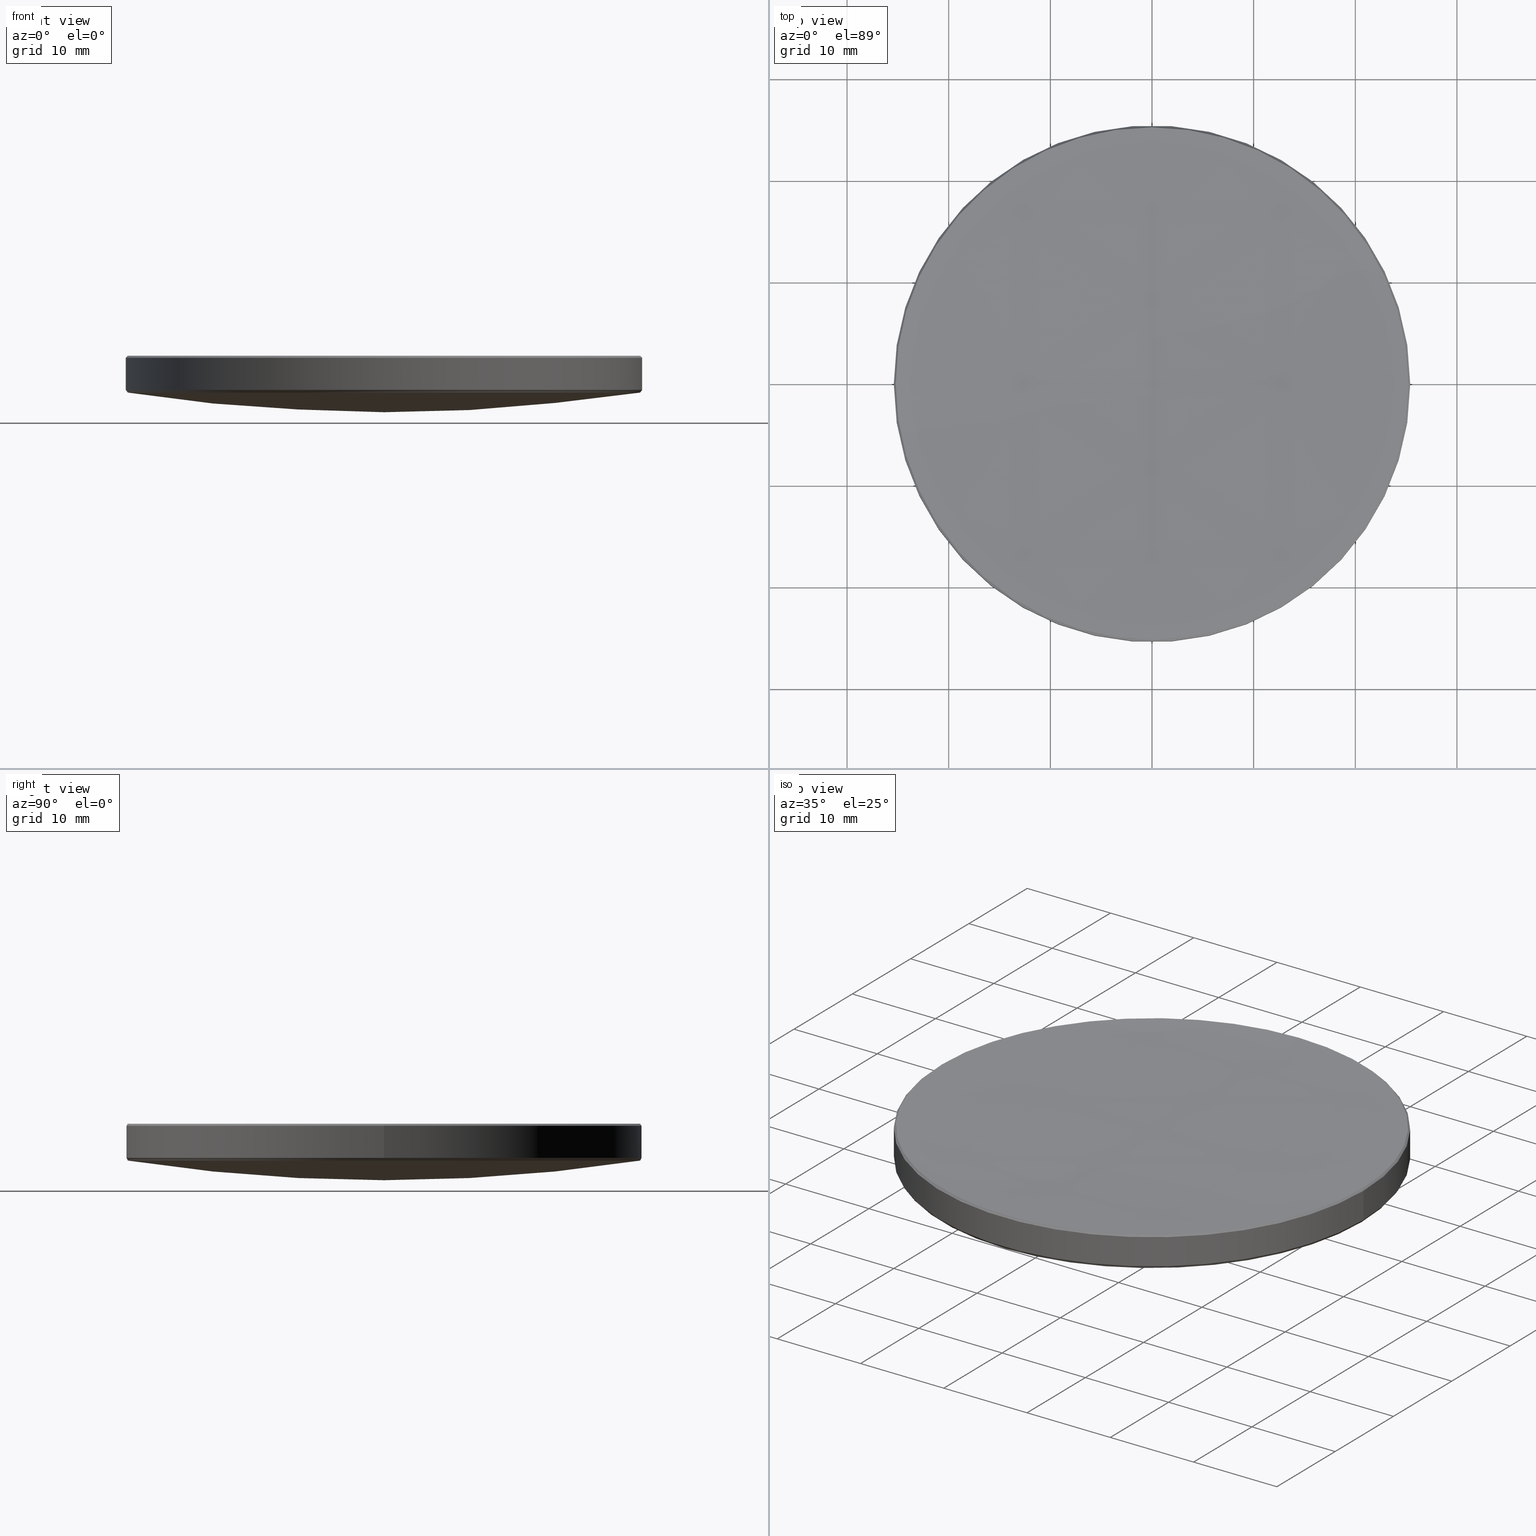
[diagram: canonical four-view strip — front | top / right | iso, engineering-drawing reading convention]
A machine part, canonical four-view strip (front | top / right | iso — engineering-drawing reading convention). The complete STEP part file that produces these views, byte-faithful:
ISO-10303-21;
HEADER;
FILE_DESCRIPTION (( 'STEP AP214' ),
    '1' );
FILE_NAME ('GLM2-050B-500-UV.STEP',
    '2024-08-09T03:00:48',
    ( 'Windows User' ),
    ( 'P R C' ),
    'SwSTEP 2.0',
    'SolidWorks 2022',
    '' );
FILE_SCHEMA (( 'AUTOMOTIVE_DESIGN' ));
ENDSEC;

DATA;
#1 = AXIS2_PLACEMENT_3D ( 'NONE', #275, #308, #230 ) ;
#2 = CARTESIAN_POINT ( 'NONE',  ( 0.000000000000000000, 0.000000000000000000, 17.59166947258827918 ) ) ;
#3 = CIRCLE ( 'NONE', #282, 25.20833052741164693 ) ;
#4 = DIRECTION ( 'NONE',  ( -0.000000000000000000, -0.000000000000000000, -1.000000000000000000 ) ) ;
#5 = CARTESIAN_POINT ( 'NONE',  ( 0.000000000000000000, 0.000000000000000000, 17.39999999999997016 ) ) ;
#6 = VERTEX_POINT ( 'NONE', #119 ) ;
#7 = ADVANCED_FACE ( 'NONE', ( #220 ), #287, .T. ) ;
#8 = APPLICATION_PROTOCOL_DEFINITION ( 'draft international standard', 'automotive_design', 1998, #221 ) ;
#9 = AXIS2_PLACEMENT_3D ( 'NONE', #148, #249, #124 ) ;
#10 = PRESENTATION_STYLE_ASSIGNMENT (( #301 ) ) ;
#11 = ORIENTED_EDGE ( 'NONE', *, *, #279, .F. ) ;
#12 = ORIENTED_EDGE ( 'NONE', *, *, #326, .T. ) ;
#13 = CIRCLE ( 'NONE', #73, 25.39999999999999858 ) ;
#14 = VERTEX_POINT ( 'NONE', #146 ) ;
#15 = VERTEX_POINT ( 'NONE', #270 ) ;
#16 = EDGE_CURVE ( 'NONE', #15, #169, #13, .T. ) ;
#17 = FACE_OUTER_BOUND ( 'NONE', #315, .T. ) ;
#18 = CARTESIAN_POINT ( 'NONE',  ( 0.000000000000000000, 3.568314611015600113E-14, 17.04618901191712155 ) ) ;
#19 = DIRECTION ( 'NONE',  ( -0.000000000000000000, -0.000000000000000000, 1.000000000000000000 ) ) ;
#20 = AXIS2_PLACEMENT_3D ( 'NONE', #79, #304, #155 ) ;
#21 = SURFACE_STYLE_FILL_AREA ( #184 ) ;
#22 = EDGE_CURVE ( 'NONE', #317, #118, #189, .T. ) ;
#23 = DIRECTION ( 'NONE',  ( 0.000000000000000000, 1.000000000000000000, 0.000000000000000000 ) ) ;
#24 = LINE ( 'NONE', #300, #276 ) ;
#25 =( GEOMETRIC_REPRESENTATION_CONTEXT ( 3 ) GLOBAL_UNCERTAINTY_ASSIGNED_CONTEXT ( ( #258 ) ) GLOBAL_UNIT_ASSIGNED_CONTEXT ( ( #241, #235, #190 ) ) REPRESENTATION_CONTEXT ( 'NONE', 'WORKASPACE' ) );
#26 = DIRECTION ( 'NONE',  ( -0.000000000000000000, -0.000000000000000000, -1.000000000000000000 ) ) ;
#27 = EDGE_CURVE ( 'NONE', #269, #290, #260, .T. ) ;
#28 = PRODUCT_DEFINITION_CONTEXT ( 'detailed design', #221, 'design' ) ;
#29 = CIRCLE ( 'NONE', #91, 25.20833052741164693 ) ;
#30 = PRESENTATION_STYLE_ASSIGNMENT (( #89 ) ) ;
#31 = DIRECTION ( 'NONE',  ( 1.000000000000000000, 0.000000000000000000, 0.000000000000000000 ) ) ;
#32 = SHAPE_DEFINITION_REPRESENTATION ( #296, #65 ) ;
#33 = ORIENTED_EDGE ( 'NONE', *, *, #320, .T. ) ;
#34 = ORIENTED_EDGE ( 'NONE', *, *, #153, .F. ) ;
#35 = EDGE_LOOP ( 'NONE', ( #165, #140, #215, #98 ) ) ;
#36 = AXIS2_PLACEMENT_3D ( 'NONE', #2, #214, #294 ) ;
#37 = ORIENTED_EDGE ( 'NONE', *, *, #16, .F. ) ;
#38 = PRODUCT_RELATED_PRODUCT_CATEGORY ( 'part', '', ( #280 ) ) ;
#39 = PRESENTATION_LAYER_ASSIGNMENT (  '', '', ( #172 ) ) ;
#40 = ORIENTED_EDGE ( 'NONE', *, *, #331, .T. ) ;
#41 =( NAMED_UNIT ( * ) SI_UNIT ( $, .STERADIAN. ) SOLID_ANGLE_UNIT ( ) );
#42 = AXIS2_PLACEMENT_3D ( 'NONE', #170, #267, #318 ) ;
#43 = CARTESIAN_POINT ( 'NONE',  ( 0.000000000000000000, 0.000000000000000000, 17.39999999999997016 ) ) ;
#44 = VERTEX_POINT ( 'NONE', #18 ) ;
#45 = DIRECTION ( 'NONE',  ( 1.000000000000000000, 0.000000000000000000, 0.000000000000000000 ) ) ;
#46 = DIRECTION ( 'NONE',  ( 0.000000000000000000, 1.000000000000000000, 0.000000000000000000 ) ) ;
#47 = CARTESIAN_POINT ( 'NONE',  ( -25.20247402996205821, 3.098507892486505665E-15, 13.96941892127251350 ) ) ;
#48 = DIRECTION ( 'NONE',  ( 0.000000000000000000, 0.000000000000000000, -1.000000000000000000 ) ) ;
#49 = CARTESIAN_POINT ( 'NONE',  ( -25.39999999999999858, 0.000000000000000000, 20.00000000000000000 ) ) ;
#50 = CARTESIAN_POINT ( 'NONE',  ( -25.39999999999999858, 3.110602869834276865E-15, 14.23965329215320885 ) ) ;
#51 = CARTESIAN_POINT ( 'NONE',  ( -25.39999999999999858, 0.000000000000000000, 17.39999999999997016 ) ) ;
#52 = SPHERICAL_SURFACE ( 'NONE', #323, 165.3700000000000045 ) ;
#53 = AXIS2_PLACEMENT_3D ( 'NONE', #5, #236, #312 ) ;
#54 = COLOUR_RGB ( '',1.000000000000000000, 1.000000000000000000, 1.000000000000000000 ) ;
#55 = UNCERTAINTY_MEASURE_WITH_UNIT (LENGTH_MEASURE( 1.000000000000000082E-05 ), #138, 'distance_accuracy_value', 'NONE');
#56 = AXIS2_PLACEMENT_3D ( 'NONE', #122, #177, #321 ) ;
#57 = DIRECTION ( 'NONE',  ( 1.000000000000000000, 0.000000000000000000, 0.000000000000000000 ) ) ;
#58 = ORIENTED_EDGE ( 'NONE', *, *, #197, .T. ) ;
#59 = CIRCLE ( 'NONE', #125, 25.20833052741164693 ) ;
#60 = CARTESIAN_POINT ( 'NONE',  ( 0.000000000000000000, 0.000000000000000000, 17.59166947258827918 ) ) ;
#61 = CARTESIAN_POINT ( 'NONE',  ( 0.000000000000000000, 0.000000000000000000, 20.00000000000000000 ) ) ;
#62 = CARTESIAN_POINT ( 'NONE',  ( 0.000000000000000000, 0.000000000000000000, 0.000000000000000000 ) ) ;
#63 = EDGE_LOOP ( 'NONE', ( #293, #289, #11, #142, #37 ) ) ;
#64 = CARTESIAN_POINT ( 'NONE',  ( 0.000000000000000000, 0.000000000000000000, 14.23965329215320885 ) ) ;
#65 = ADVANCED_BREP_SHAPE_REPRESENTATION ( 'GLM2-050B-500-UV', ( #240, #71 ), #109 ) ;
#66 = DIRECTION ( 'NONE',  ( -0.000000000000000000, -0.000000000000000000, 1.000000000000000000 ) ) ;
#67 = ORIENTED_EDGE ( 'NONE', *, *, #331, .F. ) ;
#68 = CARTESIAN_POINT ( 'NONE',  ( 0.000000000000000000, 25.20833052741184588, 17.59166947258827918 ) ) ;
#69 = CONICAL_SURFACE ( 'NONE', #256, 25.39999999999999858, 0.6311927713080182079 ) ;
#70 = ORIENTED_EDGE ( 'NONE', *, *, #16, .T. ) ;
#71 = AXIS2_PLACEMENT_3D ( 'NONE', #62, #120, #286 ) ;
#72 = ORIENTED_EDGE ( 'NONE', *, *, #87, .F. ) ;
#73 = AXIS2_PLACEMENT_3D ( 'NONE', #97, #66, #245 ) ;
#74 = DIRECTION ( 'NONE',  ( 1.000000000000000000, 0.000000000000000000, 0.000000000000000000 ) ) ;
#75 = LINE ( 'NONE', #322, #332 ) ;
#76 = CARTESIAN_POINT ( 'NONE',  ( -25.20833052741164693, 0.000000000000000000, 17.59166947258827918 ) ) ;
#77 = DIRECTION ( 'NONE',  ( -1.000000000000000000, 0.000000000000000000, 0.000000000000000000 ) ) ;
#78 = AXIS2_PLACEMENT_3D ( 'NONE', #262, #114, #211 ) ;
#79 = CARTESIAN_POINT ( 'NONE',  ( 0.000000000000000000, 0.000000000000000000, 13.96941892127251350 ) ) ;
#80 = CONICAL_SURFACE ( 'NONE', #117, 25.20833052741166114, 0.7853981633975297694 ) ;
#81 = CARTESIAN_POINT ( 'NONE',  ( 0.000000000000000000, 0.000000000000000000, 17.59166947258827918 ) ) ;
#82 = DIRECTION ( 'NONE',  ( -1.000000000000000000, 0.000000000000000000, 0.000000000000000000 ) ) ;
#83 = EDGE_CURVE ( 'NONE', #168, #319, #299, .T. ) ;
#84 = DIRECTION ( 'NONE',  ( -0.000000000000000000, -0.000000000000000000, 1.000000000000000000 ) ) ;
#85 = DIRECTION ( 'NONE',  ( -1.000000000000000000, 0.000000000000000000, 0.000000000000000000 ) ) ;
#86 = CIRCLE ( 'NONE', #263, 582.7500000000000000 ) ;
#87 = EDGE_CURVE ( 'NONE', #14, #247, #3, .T. ) ;
#88 = ADVANCED_FACE ( 'NONE', ( #272 ), #137, .T. ) ;
#89 = SURFACE_STYLE_USAGE ( .BOTH. , #92 ) ;
#90 = EDGE_LOOP ( 'NONE', ( #199, #193, #222, #266, #213 ) ) ;
#91 = AXIS2_PLACEMENT_3D ( 'NONE', #208, #84, #45 ) ;
#92 = SURFACE_SIDE_STYLE ('',( #217 ) ) ;
#93 =( NAMED_UNIT ( * ) PLANE_ANGLE_UNIT ( ) SI_UNIT ( $, .RADIAN. ) );
#94 = ORIENTED_EDGE ( 'NONE', *, *, #187, .T. ) ;
#95 = AXIS2_PLACEMENT_3D ( 'NONE', #179, #85, #23 ) ;
#96 = EDGE_CURVE ( 'NONE', #317, #15, #107, .T. ) ;
#97 = CARTESIAN_POINT ( 'NONE',  ( 0.000000000000000000, 0.000000000000000000, 14.23965329215320885 ) ) ;
#98 = ORIENTED_EDGE ( 'NONE', *, *, #22, .T. ) ;
#99 = EDGE_LOOP ( 'NONE', ( #174, #40, #12, #288 ) ) ;
#100 = ORIENTED_EDGE ( 'NONE', *, *, #186, .T. ) ;
#101 = CIRCLE ( 'NONE', #78, 25.20247402996205821 ) ;
#102 = CARTESIAN_POINT ( 'NONE',  ( 0.000000000000000000, 0.000000000000000000, 17.59166947258827918 ) ) ;
#103 = PRESENTATION_LAYER_ASSIGNMENT (  '', '', ( #237 ) ) ;
#104 = FACE_OUTER_BOUND ( 'NONE', #35, .T. ) ;
#105 = DIRECTION ( 'NONE',  ( -1.000000000000000000, 0.000000000000000000, 0.000000000000000000 ) ) ;
#106 = CARTESIAN_POINT ( 'NONE',  ( -3.087130129224342369E-15, -25.20833052741184588, 17.59166947258827918 ) ) ;
#107 = LINE ( 'NONE', #50, #206 ) ;
#108 = DIRECTION ( 'NONE',  ( 0.000000000000000000, 0.000000000000000000, -1.000000000000000000 ) ) ;
#109 =( GEOMETRIC_REPRESENTATION_CONTEXT ( 3 ) GLOBAL_UNCERTAINTY_ASSIGNED_CONTEXT ( ( #310 ) ) GLOBAL_UNIT_ASSIGNED_CONTEXT ( ( #133, #281, #110 ) ) REPRESENTATION_CONTEXT ( 'NONE', 'WORKASPACE' ) );
#110 =( NAMED_UNIT ( * ) SI_UNIT ( $, .STERADIAN. ) SOLID_ANGLE_UNIT ( ) );
#111 = AXIS2_PLACEMENT_3D ( 'NONE', #127, #19, #126 ) ;
#112 = AXIS2_PLACEMENT_3D ( 'NONE', #43, #297, #248 ) ;
#113 = ORIENTED_EDGE ( 'NONE', *, *, #320, .F. ) ;
#114 = DIRECTION ( 'NONE',  ( 0.000000000000000000, 0.000000000000000000, -1.000000000000000000 ) ) ;
#115 = VERTEX_POINT ( 'NONE', #76 ) ;
#116 = DIRECTION ( 'NONE',  ( -1.000000000000000000, 0.000000000000000000, 0.000000000000000000 ) ) ;
#117 = AXIS2_PLACEMENT_3D ( 'NONE', #81, #253, #82 ) ;
#118 = VERTEX_POINT ( 'NONE', #330 ) ;
#119 = CARTESIAN_POINT ( 'NONE',  ( 25.20247402996205821, 0.000000000000000000, 13.96941892127251350 ) ) ;
#120 = DIRECTION ( 'NONE',  ( 0.000000000000000000, 0.000000000000000000, 1.000000000000000000 ) ) ;
#121 = ORIENTED_EDGE ( 'NONE', *, *, #261, .T. ) ;
#122 = CARTESIAN_POINT ( 'NONE',  ( 0.000000000000000000, 0.000000000000000000, 177.4077014708915385 ) ) ;
#123 = FACE_OUTER_BOUND ( 'NONE', #198, .T. ) ;
#124 = DIRECTION ( 'NONE',  ( -1.224646799147353207E-16, -1.000000000000000000, 0.000000000000000000 ) ) ;
#125 = AXIS2_PLACEMENT_3D ( 'NONE', #325, #324, #229 ) ;
#126 = DIRECTION ( 'NONE',  ( -1.000000000000000000, 0.000000000000000000, 0.000000000000000000 ) ) ;
#127 = CARTESIAN_POINT ( 'NONE',  ( 0.000000000000000000, 0.000000000000000000, 14.23965329215320885 ) ) ;
#128 = EDGE_CURVE ( 'NONE', #44, #247, #86, .T. ) ;
#129 = FILL_AREA_STYLE_COLOUR ( '', #54 ) ;
#130 = CARTESIAN_POINT ( 'NONE',  ( 0.000000000000000000, 0.000000000000000000, 599.7961890119171358 ) ) ;
#131 = SPHERICAL_SURFACE ( 'NONE', #216, 165.3700000000000045 ) ;
#132 = VECTOR ( 'NONE', #154, 1000.000000000000114 ) ;
#133 =( LENGTH_UNIT ( ) NAMED_UNIT ( * ) SI_UNIT ( .MILLI., .METRE. ) );
#134 = ADVANCED_FACE ( 'NONE', ( #104 ), #52, .T. ) ;
#135 = FACE_OUTER_BOUND ( 'NONE', #63, .T. ) ;
#136 = COLOUR_RGB ( '',1.000000000000000000, 1.000000000000000000, 1.000000000000000000 ) ;
#137 = CYLINDRICAL_SURFACE ( 'NONE', #246, 25.39999999999999858 ) ;
#138 =( LENGTH_UNIT ( ) NAMED_UNIT ( * ) SI_UNIT ( .MILLI., .METRE. ) );
#139 = ORIENTED_EDGE ( 'NONE', *, *, #326, .F. ) ;
#140 = ORIENTED_EDGE ( 'NONE', *, *, #83, .T. ) ;
#141 = MECHANICAL_DESIGN_GEOMETRIC_PRESENTATION_REPRESENTATION (  '', ( #237 ), #188 ) ;
#142 = ORIENTED_EDGE ( 'NONE', *, *, #283, .T. ) ;
#143 = ORIENTED_EDGE ( 'NONE', *, *, #233, .T. ) ;
#144 = EDGE_LOOP ( 'NONE', ( #191, #210, #100, #70 ) ) ;
#145 = AXIS2_PLACEMENT_3D ( 'NONE', #61, #242, #116 ) ;
#146 = CARTESIAN_POINT ( 'NONE',  ( 25.20833052741164693, 3.098866499529297784E-15, 17.59166947258827918 ) ) ;
#147 = ORIENTED_EDGE ( 'NONE', *, *, #153, .T. ) ;
#148 = CARTESIAN_POINT ( 'NONE',  ( 0.000000000000000000, 0.000000000000000000, 599.7961890119171358 ) ) ;
#149 = FACE_OUTER_BOUND ( 'NONE', #90, .T. ) ;
#150 = SPHERICAL_SURFACE ( 'NONE', #95, 582.7500000000000000 ) ;
#151 = DIRECTION ( 'NONE',  ( 0.000000000000000000, 1.000000000000000000, 0.000000000000000000 ) ) ;
#152 = CIRCLE ( 'NONE', #309, 25.20247402996205821 ) ;
#153 = EDGE_CURVE ( 'NONE', #115, #239, #59, .T. ) ;
#154 = DIRECTION ( 'NONE',  ( 0.5901081306526686499, 0.000000000000000000, 0.8073242187235639689 ) ) ;
#155 = DIRECTION ( 'NONE',  ( 1.000000000000000000, 0.000000000000000000, 0.000000000000000000 ) ) ;
#156 = DIRECTION ( 'NONE',  ( -0.000000000000000000, -0.000000000000000000, -1.000000000000000000 ) ) ;
#157 = CARTESIAN_POINT ( 'NONE',  ( 0.000000000000000000, 0.000000000000000000, 177.4077014708915385 ) ) ;
#158 = CIRCLE ( 'NONE', #53, 25.39999999999999858 ) ;
#159 = MECHANICAL_DESIGN_GEOMETRIC_PRESENTATION_REPRESENTATION (  '', ( #172 ), #25 ) ;
#160 = AXIS2_PLACEMENT_3D ( 'NONE', #130, #77, #151 ) ;
#161 = CIRCLE ( 'NONE', #295, 165.3700000000000045 ) ;
#162 = ADVANCED_FACE ( 'NONE', ( #149 ), #183, .T. ) ;
#163 = FILL_AREA_STYLE_COLOUR ( '', #136 ) ;
#164 = CARTESIAN_POINT ( 'NONE',  ( 25.39999999999999858, 3.110602869834276865E-15, 17.39999999999997016 ) ) ;
#165 = ORIENTED_EDGE ( 'NONE', *, *, #233, .F. ) ;
#166 = CIRCLE ( 'NONE', #111, 25.39999999999999858 ) ;
#167 = EDGE_CURVE ( 'NONE', #319, #317, #152, .T. ) ;
#168 = VERTEX_POINT ( 'NONE', #257 ) ;
#169 = VERTEX_POINT ( 'NONE', #254 ) ;
#170 = CARTESIAN_POINT ( 'NONE',  ( 0.000000000000000000, 0.000000000000000000, 13.96941892127251350 ) ) ;
#171 = ORIENTED_EDGE ( 'NONE', *, *, #197, .F. ) ;
#172 = STYLED_ITEM ( 'NONE', ( #30 ), #65 ) ;
#173 = ORIENTED_EDGE ( 'NONE', *, *, #255, .T. ) ;
#174 = ORIENTED_EDGE ( 'NONE', *, *, #128, .F. ) ;
#175 = DIRECTION ( 'NONE',  ( -0.000000000000000000, -0.000000000000000000, 1.000000000000000000 ) ) ;
#176 = CLOSED_SHELL ( 'NONE', ( #250, #162, #303, #134, #88, #7, #219, #231, #243, #227 ) ) ;
#177 = DIRECTION ( 'NONE',  ( -1.000000000000000000, 1.224646799147353207E-16, 0.000000000000000000 ) ) ;
#178 = FACE_OUTER_BOUND ( 'NONE', #99, .T. ) ;
#179 = CARTESIAN_POINT ( 'NONE',  ( 0.000000000000000000, 0.000000000000000000, 599.7961890119171358 ) ) ;
#180 = EDGE_CURVE ( 'NONE', #169, #15, #166, .T. ) ;
#181 = DIRECTION ( 'NONE',  ( 1.000000000000000000, 0.000000000000000000, 0.000000000000000000 ) ) ;
#182 = CARTESIAN_POINT ( 'NONE',  ( -25.20833052741166114, 0.000000000000000000, 17.59166947258827918 ) ) ;
#183 = CONICAL_SURFACE ( 'NONE', #1, 25.39999999999999858, 0.6311927713080182079 ) ;
#184 = FILL_AREA_STYLE ('',( #129 ) ) ;
#185 = DIRECTION ( 'NONE',  ( 0.7071067811866051933, 8.659560562355639135E-17, -0.7071067811864899522 ) ) ;
#186 = EDGE_CURVE ( 'NONE', #290, #15, #225, .T. ) ;
#187 = EDGE_CURVE ( 'NONE', #118, #6, #305, .T. ) ;
#188 =( GEOMETRIC_REPRESENTATION_CONTEXT ( 3 ) GLOBAL_UNCERTAINTY_ASSIGNED_CONTEXT ( ( #55 ) ) GLOBAL_UNIT_ASSIGNED_CONTEXT ( ( #138, #93, #41 ) ) REPRESENTATION_CONTEXT ( 'NONE', 'WORKASPACE' ) );
#189 = CIRCLE ( 'NONE', #42, 25.20247402996205821 ) ;
#190 =( NAMED_UNIT ( * ) SI_UNIT ( $, .STERADIAN. ) SOLID_ANGLE_UNIT ( ) );
#191 = ORIENTED_EDGE ( 'NONE', *, *, #298, .F. ) ;
#192 = LINE ( 'NONE', #302, #132 ) ;
#193 = ORIENTED_EDGE ( 'NONE', *, *, #96, .T. ) ;
#194 = ORIENTED_EDGE ( 'NONE', *, *, #83, .F. ) ;
#195 = ORIENTED_EDGE ( 'NONE', *, *, #27, .F. ) ;
#196 = ORIENTED_EDGE ( 'NONE', *, *, #255, .F. ) ;
#197 = EDGE_CURVE ( 'NONE', #14, #269, #24, .T. ) ;
#198 = EDGE_LOOP ( 'NONE', ( #194, #143, #94, #271 ) ) ;
#199 = ORIENTED_EDGE ( 'NONE', *, *, #22, .F. ) ;
#200 = DIRECTION ( 'NONE',  ( -0.000000000000000000, -0.000000000000000000, 1.000000000000000000 ) ) ;
#201 = APPLICATION_CONTEXT ( 'automotive_design' ) ;
#202 = FACE_OUTER_BOUND ( 'NONE', #264, .T. ) ;
#203 = DIRECTION ( 'NONE',  ( 1.000000000000000000, -0.000000000000000000, 0.000000000000000000 ) ) ;
#204 = VECTOR ( 'NONE', #329, 1000.000000000000000 ) ;
#205 = DIRECTION ( 'NONE',  ( 0.000000000000000000, 1.000000000000000000, 0.000000000000000000 ) ) ;
#206 = VECTOR ( 'NONE', #306, 1000.000000000000114 ) ;
#207 = CARTESIAN_POINT ( 'NONE',  ( 0.000000000000000000, 0.000000000000000000, 599.7961890119171358 ) ) ;
#208 = CARTESIAN_POINT ( 'NONE',  ( 0.000000000000000000, 0.000000000000000000, 17.59166947258827918 ) ) ;
#209 = APPLICATION_PROTOCOL_DEFINITION ( 'draft international standard', 'automotive_design', 1998, #201 ) ;
#210 = ORIENTED_EDGE ( 'NONE', *, *, #27, .T. ) ;
#211 = DIRECTION ( 'NONE',  ( 1.000000000000000000, 0.000000000000000000, 0.000000000000000000 ) ) ;
#212 = CIRCLE ( 'NONE', #9, 582.7500000000000000 ) ;
#213 = ORIENTED_EDGE ( 'NONE', *, *, #187, .F. ) ;
#214 = DIRECTION ( 'NONE',  ( 0.000000000000000000, 0.000000000000000000, -1.000000000000000000 ) ) ;
#215 = ORIENTED_EDGE ( 'NONE', *, *, #167, .T. ) ;
#216 = AXIS2_PLACEMENT_3D ( 'NONE', #232, #328, #46 ) ;
#217 = SURFACE_STYLE_FILL_AREA ( #314 ) ;
#218 = ORIENTED_EDGE ( 'NONE', *, *, #186, .F. ) ;
#219 = ADVANCED_FACE ( 'NONE', ( #123 ), #131, .T. ) ;
#220 = FACE_OUTER_BOUND ( 'NONE', #144, .T. ) ;
#221 = APPLICATION_CONTEXT ( 'automotive_design' ) ;
#222 = ORIENTED_EDGE ( 'NONE', *, *, #180, .F. ) ;
#223 = ORIENTED_EDGE ( 'NONE', *, *, #261, .F. ) ;
#224 = PRODUCT_DEFINITION_FORMATION_WITH_SPECIFIED_SOURCE ( '�κ�', '', #280, .NOT_KNOWN. ) ;
#225 = LINE ( 'NONE', #49, #259 ) ;
#226 = CARTESIAN_POINT ( 'NONE',  ( 0.000000000000000000, 0.000000000000000000, 13.96941892127251350 ) ) ;
#227 = ADVANCED_FACE ( 'NONE', ( #202 ), #80, .T. ) ;
#228 = CARTESIAN_POINT ( 'NONE',  ( -3.086412915138717110E-15, -25.20247402996192321, 13.96941892127251350 ) ) ;
#229 = DIRECTION ( 'NONE',  ( 1.000000000000000000, 0.000000000000000000, 0.000000000000000000 ) ) ;
#230 = DIRECTION ( 'NONE',  ( 1.000000000000000000, 0.000000000000000000, 0.000000000000000000 ) ) ;
#231 = ADVANCED_FACE ( 'NONE', ( #274 ), #150, .F. ) ;
#232 = CARTESIAN_POINT ( 'NONE',  ( 0.000000000000000000, 0.000000000000000000, 177.4077014708915385 ) ) ;
#233 = EDGE_CURVE ( 'NONE', #168, #118, #161, .T. ) ;
#234 = AXIS2_PLACEMENT_3D ( 'NONE', #60, #175, #31 ) ;
#235 =( NAMED_UNIT ( * ) PLANE_ANGLE_UNIT ( ) SI_UNIT ( $, .RADIAN. ) );
#236 = DIRECTION ( 'NONE',  ( 0.000000000000000000, 0.000000000000000000, -1.000000000000000000 ) ) ;
#237 = STYLED_ITEM ( 'NONE', ( #10 ), #240 ) ;
#238 = CARTESIAN_POINT ( 'NONE',  ( 0.000000000000000000, 0.000000000000000000, 20.00000000000000000 ) ) ;
#239 = VERTEX_POINT ( 'NONE', #106 ) ;
#240 = MANIFOLD_SOLID_BREP ( '����1', #176 ) ;
#241 =( LENGTH_UNIT ( ) NAMED_UNIT ( * ) SI_UNIT ( .MILLI., .METRE. ) );
#242 = DIRECTION ( 'NONE',  ( -0.000000000000000000, -0.000000000000000000, -1.000000000000000000 ) ) ;
#243 = ADVANCED_FACE ( 'NONE', ( #135 ), #69, .T. ) ;
#244 = EDGE_LOOP ( 'NONE', ( #121, #265, #291, #218 ) ) ;
#245 = DIRECTION ( 'NONE',  ( -1.000000000000000000, 0.000000000000000000, 0.000000000000000000 ) ) ;
#246 = AXIS2_PLACEMENT_3D ( 'NONE', #238, #4, #313 ) ;
#247 = VERTEX_POINT ( 'NONE', #68 ) ;
#248 = DIRECTION ( 'NONE',  ( 1.000000000000000000, 0.000000000000000000, 0.000000000000000000 ) ) ;
#249 = DIRECTION ( 'NONE',  ( -1.000000000000000000, 1.224646799147353207E-16, 0.000000000000000000 ) ) ;
#250 = ADVANCED_FACE ( 'NONE', ( #17 ), #268, .T. ) ;
#251 = DIRECTION ( 'NONE',  ( 0.000000000000000000, 0.000000000000000000, -1.000000000000000000 ) ) ;
#252 = LINE ( 'NONE', #182, #204 ) ;
#253 = DIRECTION ( 'NONE',  ( 0.000000000000000000, 0.000000000000000000, -1.000000000000000000 ) ) ;
#254 = CARTESIAN_POINT ( 'NONE',  ( 25.39999999999999858, 3.110602869834276865E-15, 14.23965329215320885 ) ) ;
#255 = EDGE_CURVE ( 'NONE', #247, #115, #292, .T. ) ;
#256 = AXIS2_PLACEMENT_3D ( 'NONE', #64, #284, #57 ) ;
#257 = CARTESIAN_POINT ( 'NONE',  ( 0.000000000000000000, 1.012599205874989125E-14, 12.03770147089153220 ) ) ;
#258 = UNCERTAINTY_MEASURE_WITH_UNIT (LENGTH_MEASURE( 1.000000000000000082E-05 ), #241, 'distance_accuracy_value', 'NONE');
#259 = VECTOR ( 'NONE', #26, 1000.000000000000000 ) ;
#260 = CIRCLE ( 'NONE', #112, 25.39999999999999858 ) ;
#261 = EDGE_CURVE ( 'NONE', #290, #269, #158, .T. ) ;
#262 = CARTESIAN_POINT ( 'NONE',  ( 0.000000000000000000, 0.000000000000000000, 13.96941892127251350 ) ) ;
#263 = AXIS2_PLACEMENT_3D ( 'NONE', #207, #181, #108 ) ;
#264 = EDGE_LOOP ( 'NONE', ( #171, #139, #34, #33, #195 ) ) ;
#265 = ORIENTED_EDGE ( 'NONE', *, *, #298, .T. ) ;
#266 = ORIENTED_EDGE ( 'NONE', *, *, #283, .F. ) ;
#267 = DIRECTION ( 'NONE',  ( 0.000000000000000000, 0.000000000000000000, -1.000000000000000000 ) ) ;
#268 = CONICAL_SURFACE ( 'NONE', #36, 25.20833052741166114, 0.7853981633975297694 ) ;
#269 = VERTEX_POINT ( 'NONE', #164 ) ;
#270 = CARTESIAN_POINT ( 'NONE',  ( -25.39999999999999858, 0.000000000000000000, 14.23965329215320885 ) ) ;
#271 = ORIENTED_EDGE ( 'NONE', *, *, #279, .T. ) ;
#272 = FACE_OUTER_BOUND ( 'NONE', #244, .T. ) ;
#273 = PRODUCT_DEFINITION ( 'δ֪', '', #224, #28 ) ;
#274 = FACE_OUTER_BOUND ( 'NONE', #316, .T. ) ;
#275 = CARTESIAN_POINT ( 'NONE',  ( 0.000000000000000000, 0.000000000000000000, 14.23965329215320885 ) ) ;
#276 = VECTOR ( 'NONE', #185, 1000.000000000000000 ) ;
#277 = SURFACE_SIDE_STYLE ('',( #21 ) ) ;
#278 = DIRECTION ( 'NONE',  ( 1.000000000000000000, 0.000000000000000000, 0.000000000000000000 ) ) ;
#279 = EDGE_CURVE ( 'NONE', #6, #319, #101, .T. ) ;
#280 = PRODUCT ( 'GLM2-050B-500-UV', 'GLM2-050B-500-UV', '', ( #311 ) ) ;
#281 =( NAMED_UNIT ( * ) PLANE_ANGLE_UNIT ( ) SI_UNIT ( $, .RADIAN. ) );
#282 = AXIS2_PLACEMENT_3D ( 'NONE', #102, #200, #74 ) ;
#283 = EDGE_CURVE ( 'NONE', #6, #169, #192, .T. ) ;
#284 = DIRECTION ( 'NONE',  ( -0.000000000000000000, -0.000000000000000000, 1.000000000000000000 ) ) ;
#285 = ORIENTED_EDGE ( 'NONE', *, *, #128, .T. ) ;
#286 = DIRECTION ( 'NONE',  ( 1.000000000000000000, 0.000000000000000000, 0.000000000000000000 ) ) ;
#287 = CYLINDRICAL_SURFACE ( 'NONE', #145, 25.39999999999999858 ) ;
#288 = ORIENTED_EDGE ( 'NONE', *, *, #87, .T. ) ;
#289 = ORIENTED_EDGE ( 'NONE', *, *, #167, .F. ) ;
#290 = VERTEX_POINT ( 'NONE', #51 ) ;
#291 = ORIENTED_EDGE ( 'NONE', *, *, #180, .T. ) ;
#292 = CIRCLE ( 'NONE', #234, 25.20833052741164693 ) ;
#293 = ORIENTED_EDGE ( 'NONE', *, *, #96, .F. ) ;
#294 = DIRECTION ( 'NONE',  ( -1.000000000000000000, 0.000000000000000000, 0.000000000000000000 ) ) ;
#295 = AXIS2_PLACEMENT_3D ( 'NONE', #327, #203, #251 ) ;
#296 = PRODUCT_DEFINITION_SHAPE ( 'NONE', 'NONE',  #273 ) ;
#297 = DIRECTION ( 'NONE',  ( 0.000000000000000000, 0.000000000000000000, -1.000000000000000000 ) ) ;
#298 = EDGE_CURVE ( 'NONE', #269, #169, #75, .T. ) ;
#299 = CIRCLE ( 'NONE', #56, 165.3700000000000045 ) ;
#300 = CARTESIAN_POINT ( 'NONE',  ( 25.20833052741166114, 3.087130129224320281E-15, 17.59166947258827918 ) ) ;
#301 = SURFACE_STYLE_USAGE ( .BOTH. , #277 ) ;
#302 = CARTESIAN_POINT ( 'NONE',  ( 25.39999999999999858, 0.000000000000000000, 14.23965329215320885 ) ) ;
#303 = ADVANCED_FACE ( 'NONE', ( #178 ), #307, .F. ) ;
#304 = DIRECTION ( 'NONE',  ( 0.000000000000000000, 0.000000000000000000, -1.000000000000000000 ) ) ;
#305 = CIRCLE ( 'NONE', #20, 25.20247402996205821 ) ;
#306 = DIRECTION ( 'NONE',  ( -0.5901081306526686499, 7.226740333546186547E-17, 0.8073242187235639689 ) ) ;
#307 = SPHERICAL_SURFACE ( 'NONE', #160, 582.7500000000000000 ) ;
#308 = DIRECTION ( 'NONE',  ( -0.000000000000000000, -0.000000000000000000, 1.000000000000000000 ) ) ;
#309 = AXIS2_PLACEMENT_3D ( 'NONE', #226, #48, #278 ) ;
#310 = UNCERTAINTY_MEASURE_WITH_UNIT (LENGTH_MEASURE( 1.000000000000000082E-05 ), #133, 'distance_accuracy_value', 'NONE');
#311 = PRODUCT_CONTEXT ( 'NONE', #201, 'mechanical' ) ;
#312 = DIRECTION ( 'NONE',  ( 1.000000000000000000, 0.000000000000000000, 0.000000000000000000 ) ) ;
#313 = DIRECTION ( 'NONE',  ( -1.000000000000000000, 0.000000000000000000, 0.000000000000000000 ) ) ;
#314 = FILL_AREA_STYLE ('',( #163 ) ) ;
#315 = EDGE_LOOP ( 'NONE', ( #72, #58, #223, #113, #196 ) ) ;
#316 = EDGE_LOOP ( 'NONE', ( #67, #285, #173, #147 ) ) ;
#317 = VERTEX_POINT ( 'NONE', #47 ) ;
#318 = DIRECTION ( 'NONE',  ( 1.000000000000000000, 0.000000000000000000, 0.000000000000000000 ) ) ;
#319 = VERTEX_POINT ( 'NONE', #228 ) ;
#320 = EDGE_CURVE ( 'NONE', #115, #290, #252, .T. ) ;
#321 = DIRECTION ( 'NONE',  ( -1.224646799147353207E-16, -1.000000000000000000, 0.000000000000000000 ) ) ;
#322 = CARTESIAN_POINT ( 'NONE',  ( 25.39999999999999858, 3.110602869834276865E-15, 20.00000000000000000 ) ) ;
#323 = AXIS2_PLACEMENT_3D ( 'NONE', #157, #105, #205 ) ;
#324 = DIRECTION ( 'NONE',  ( -0.000000000000000000, -0.000000000000000000, 1.000000000000000000 ) ) ;
#325 = CARTESIAN_POINT ( 'NONE',  ( 0.000000000000000000, 0.000000000000000000, 17.59166947258827918 ) ) ;
#326 = EDGE_CURVE ( 'NONE', #239, #14, #29, .T. ) ;
#327 = CARTESIAN_POINT ( 'NONE',  ( 0.000000000000000000, 0.000000000000000000, 177.4077014708915385 ) ) ;
#328 = DIRECTION ( 'NONE',  ( -1.000000000000000000, 0.000000000000000000, 0.000000000000000000 ) ) ;
#329 = DIRECTION ( 'NONE',  ( -0.7071067811866051933, 0.000000000000000000, -0.7071067811864899522 ) ) ;
#330 = CARTESIAN_POINT ( 'NONE',  ( 0.000000000000000000, 25.20247402996192321, 13.96941892127251350 ) ) ;
#331 = EDGE_CURVE ( 'NONE', #44, #239, #212, .T. ) ;
#332 = VECTOR ( 'NONE', #156, 1000.000000000000000 ) ;
ENDSEC;
END-ISO-10303-21;
